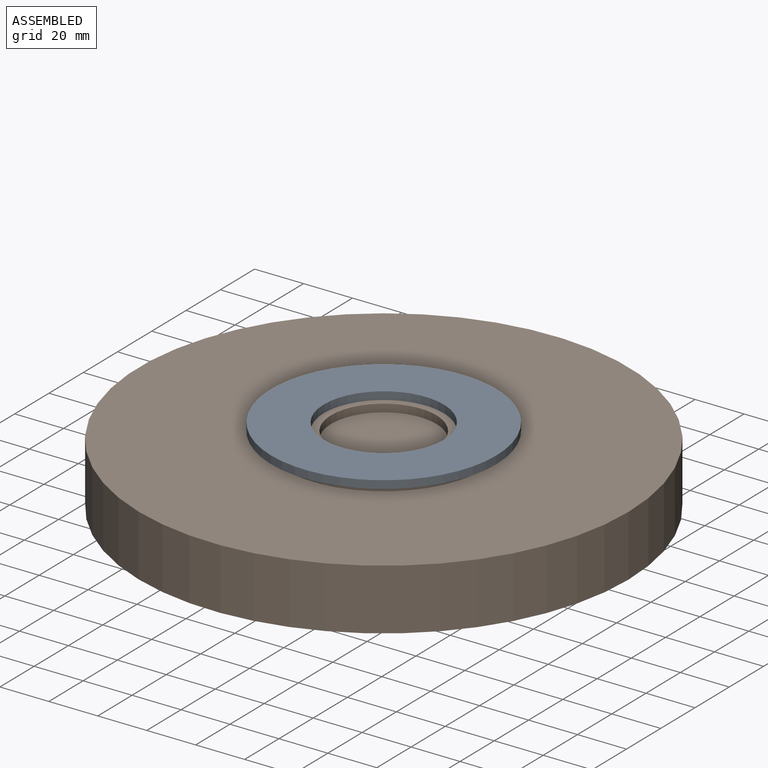
[diagram: assembled view]
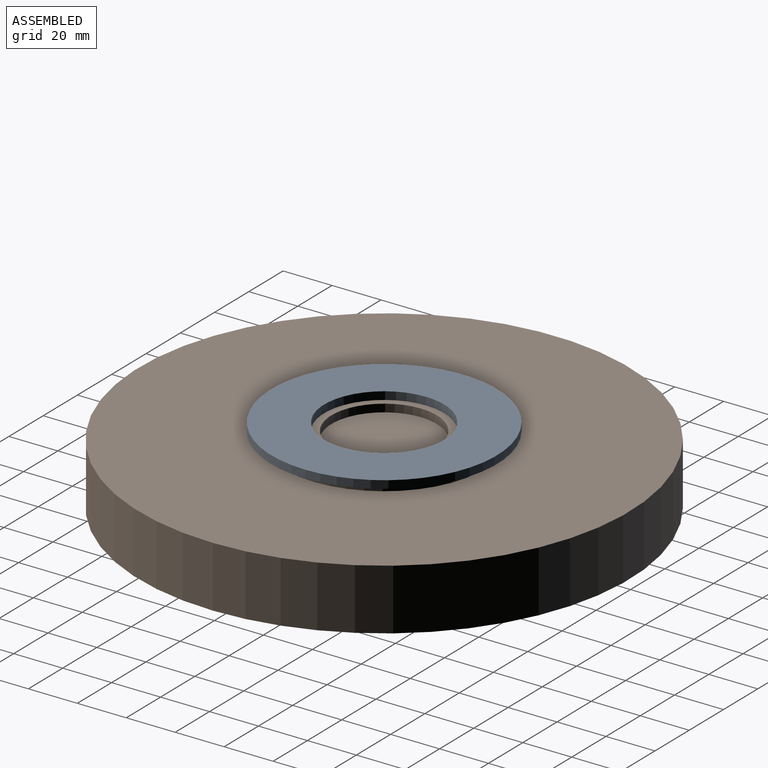
[diagram: assembled view, second angle]
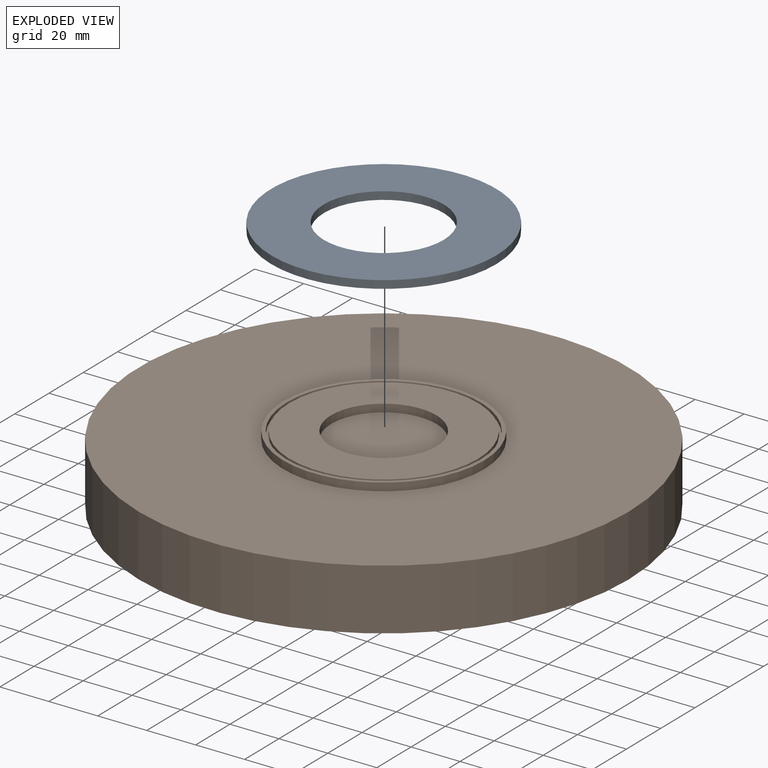
[diagram: exploded view]
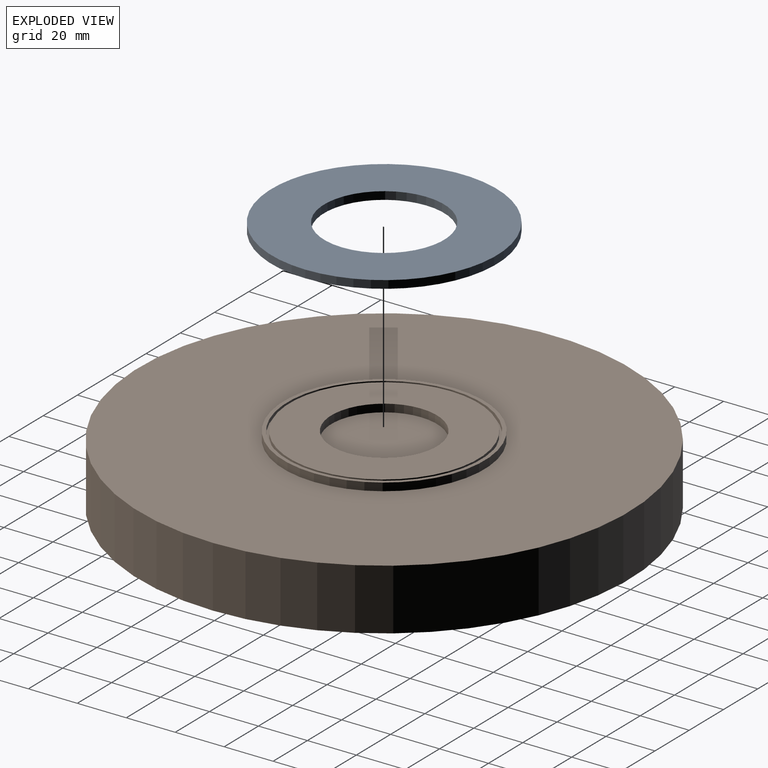
[diagram: exploded view, second angle]
ASSEMBLY  parts=2 mates=2
PART A: 4 faces, bbox 92x92x3.2 mm
  f0: cylinder r=24.5mm len=49mm, axis (0,0,-1), area 492.6mm2, adj f2,f3
  f1: cylinder r=46mm len=92mm, axis (0,0,-1), area 924.9mm2, adj f2,f3
  f2: plane 92x92mm, normal (0,0,1), area 4761.9mm2, adj f0,f1
  f3: plane 92x92mm, normal (0,0,-1), area 4761.9mm2, adj f0,f1
PART B: 11 faces, bbox 200x200x28.2 mm
  f0: cylinder r=100mm len=200mm, axis (0,0,-1), area 15708mm2, adj f1,f2
  f1: plane 200x200mm, normal (0,0,1), area 26134.9mm2, adj f0,f3
  f2: plane 200x200mm, normal (0,0,-1), area 31415.9mm2, adj f0
  f3: cylinder r=41mm len=82mm, axis (0,0,-1), area 824.4mm2, adj f1,f4
  f4: plane 82x82mm, normal (0,0,1), area 366.9mm2, adj f3,f6
  f5: cylinder r=38.55mm len=77.1mm, axis (0,0,1), area 387.5mm2, adj f7,f10
  f6: cylinder r=39.55mm len=79.1mm, axis (0,0,1), area 397.6mm2, adj f4,f7
  f7: plane 79.1x79.1mm, normal (0,0,1), area 245.4mm2, adj f5,f6
  f8: plane 43.1x43.1mm, normal (0,0,1), area 1459mm2, adj f9
  f9: cylinder r=21.55mm len=43.1mm, axis (0,0,-1), area 433.3mm2, adj f8,f10
  f10: plane 77.1x77.1mm, normal (0,0,1), area 3209.8mm2, adj f5,f9
PLACE A t=(106.35,-42.18,13.78)mm
PLACE B t=(106.35,-42.18,-14.42)mm
MATE cylindrical B.f0 <-> A.f0  axis (0,0,1) through (106.35,-42.18,13.78)mm
MATE planar B.f0 <-> A.f0  axis (0,0,1) through (106.35,-42.18,13.78)mm
